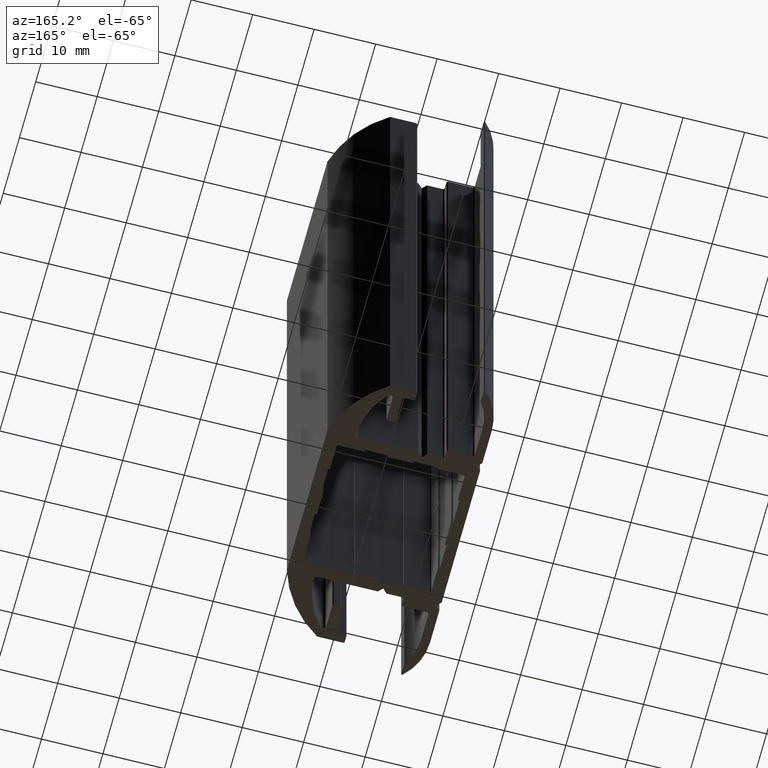
[diagram: clean part render]
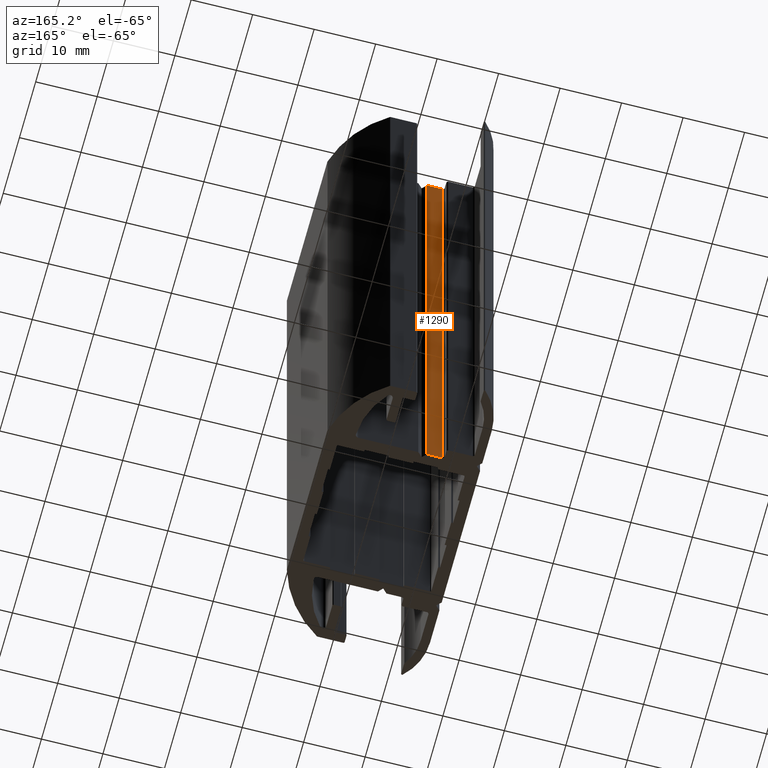
[diagram: same view with one face highlighted and labeled with its STEP entity id]
A machine part, auxiliary view. The second image highlights one B-rep face of the part: STEP entity #1290.
In plain terms, the highlighted planar face has unit normal (0, 1, 0).
Its self-contained STEP definition (entity closure, byte-faithful):
#1234=CARTESIAN_POINT('',(-16.207106779577771,12.499999998394600,0.0));
#1235=VERTEX_POINT('',#1234);
#1242=CARTESIAN_POINT('',(-16.207106779577771,12.499999998394600,100.0));
#1243=VERTEX_POINT('',#1242);
#1244=CARTESIAN_POINT('',(-16.207106779577771,12.499999998394600,0.0));
#1245=DIRECTION('',(0.0,0.0,1.0));
#1246=VECTOR('',#1245,100.0);
#1247=LINE('',#1244,#1246);
#1248=EDGE_CURVE('',#1235,#1243,#1247,.T.);
#1260=CARTESIAN_POINT('',(-16.207106779577771,12.499999998394600,0.0));
#1261=DIRECTION('',(0.0,1.0,0.0));
#1262=DIRECTION('',(-1.0,0.0,0.0));
#1263=AXIS2_PLACEMENT_3D('',#1260,#1261,#1262);
#1264=PLANE('',#1263);
#1265=CARTESIAN_POINT('',(-18.699999998141948,12.499999998394543,0.0));
#1266=VERTEX_POINT('',#1265);
#1267=CARTESIAN_POINT('',(-16.207106779577771,12.499999998394600,0.0));
#1268=DIRECTION('',(-1.0,0.0,0.0));
#1269=VECTOR('',#1268,2.492893218564177);
#1270=LINE('',#1267,#1269);
#1271=EDGE_CURVE('',#1235,#1266,#1270,.T.);
#1272=ORIENTED_EDGE('',*,*,#1271,.T.);
#1273=CARTESIAN_POINT('',(-18.699999998141948,12.499999998394543,100.0));
#1274=VERTEX_POINT('',#1273);
#1275=CARTESIAN_POINT('',(-18.699999998141948,12.499999998394543,0.0));
#1276=DIRECTION('',(0.0,0.0,1.0));
#1277=VECTOR('',#1276,100.0);
#1278=LINE('',#1275,#1277);
#1279=EDGE_CURVE('',#1266,#1274,#1278,.T.);
#1280=ORIENTED_EDGE('',*,*,#1279,.T.);
#1281=CARTESIAN_POINT('',(-16.207106779577771,12.499999998394600,100.0));
#1282=DIRECTION('',(-1.0,0.0,0.0));
#1283=VECTOR('',#1282,2.492893218564177);
#1284=LINE('',#1281,#1283);
#1285=EDGE_CURVE('',#1243,#1274,#1284,.T.);
#1286=ORIENTED_EDGE('',*,*,#1285,.F.);
#1287=ORIENTED_EDGE('',*,*,#1248,.F.);
#1288=EDGE_LOOP('',(#1272,#1280,#1286,#1287));
#1289=FACE_OUTER_BOUND('',#1288,.T.);
#1290=ADVANCED_FACE('',(#1289),#1264,.T.);